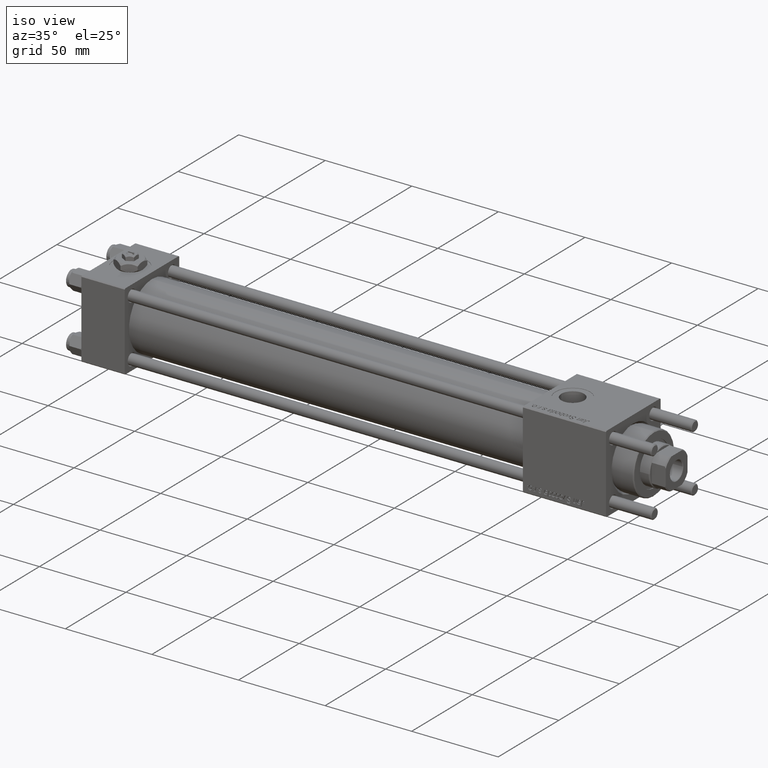
[diagram: clean part render]
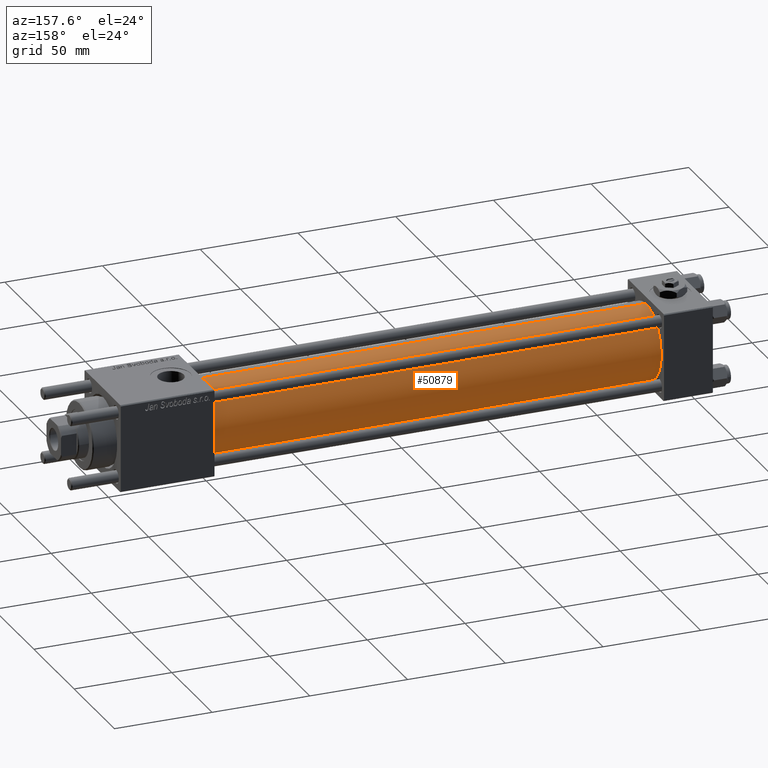
[diagram: tour spotlight — one face highlighted and labeled with its STEP entity id]
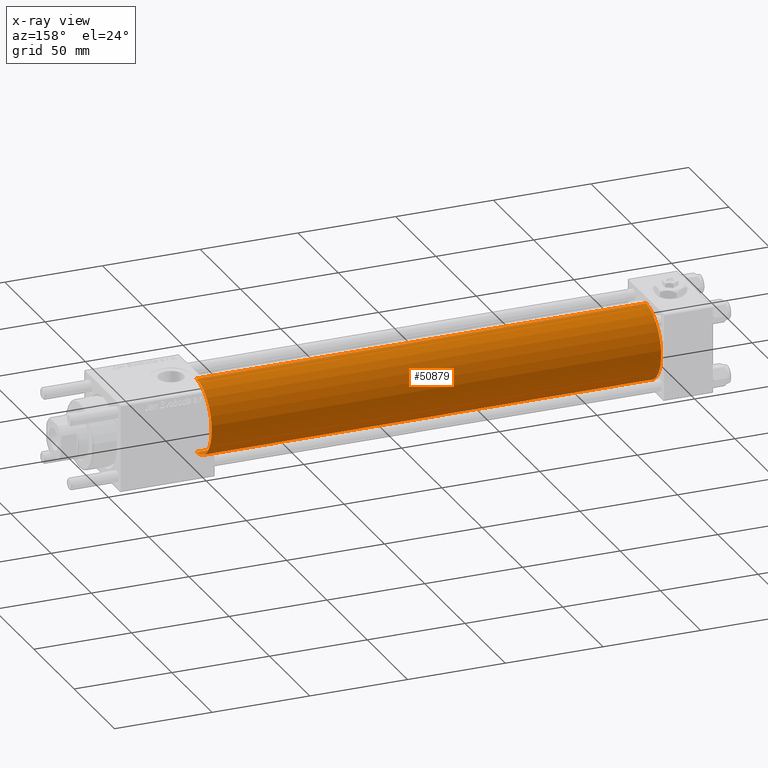
[diagram: x-ray of the same camera — body ghosted, this tour face saturated]
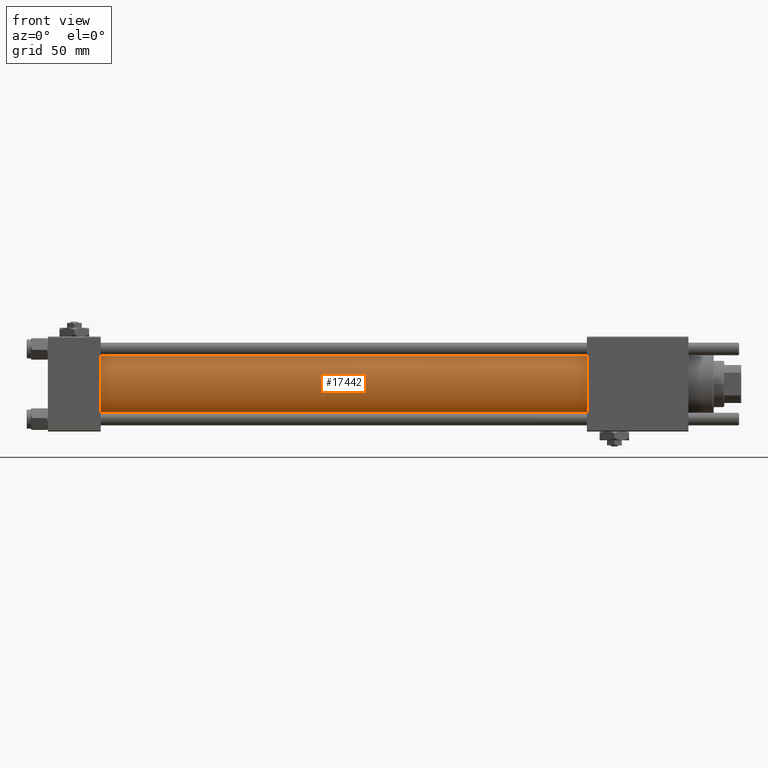
[diagram: tour spotlight — one face highlighted and labeled with its STEP entity id]
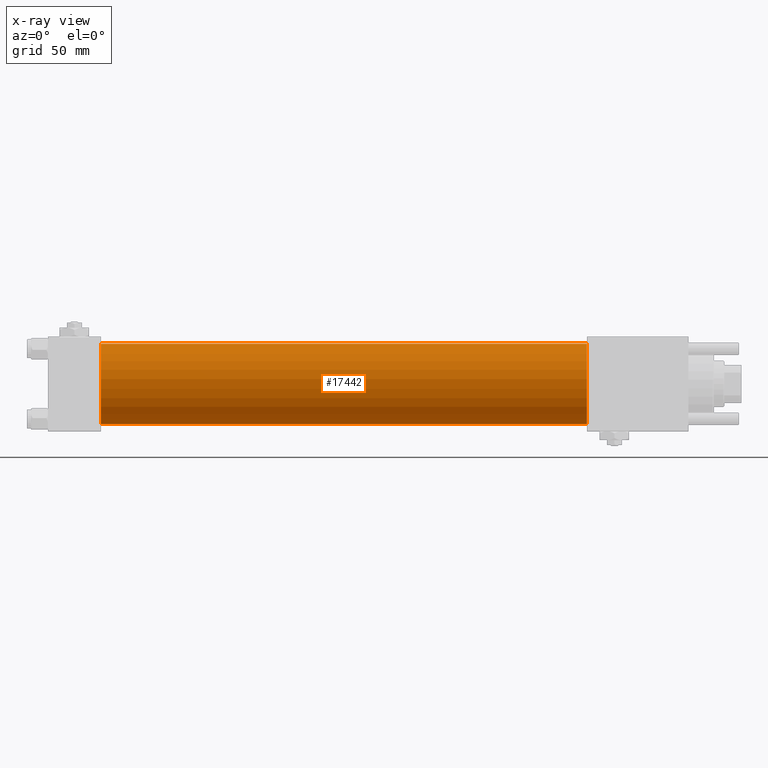
[diagram: x-ray of the same camera — body ghosted, this tour face saturated]
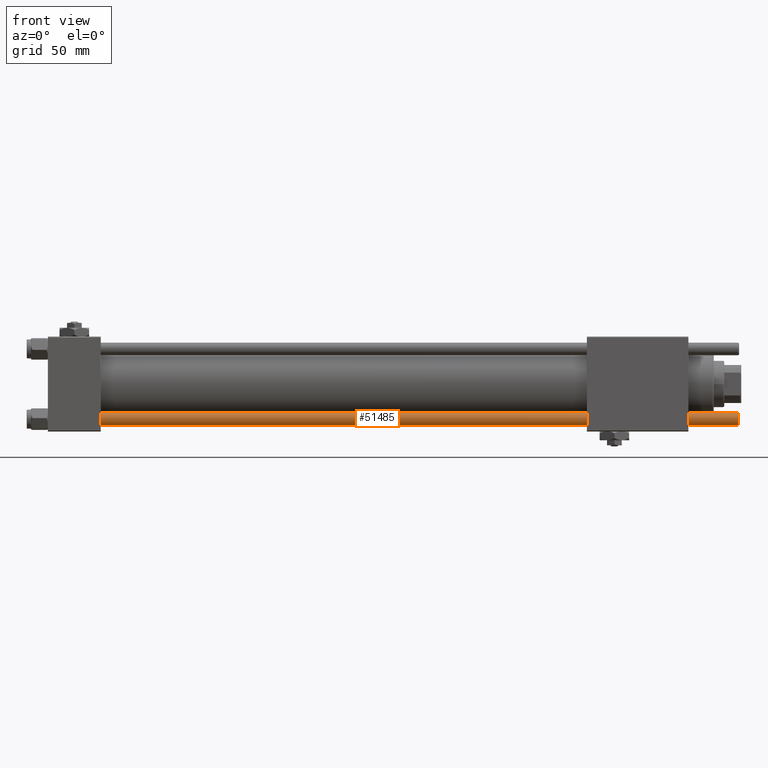
[diagram: tour spotlight — one face highlighted and labeled with its STEP entity id]
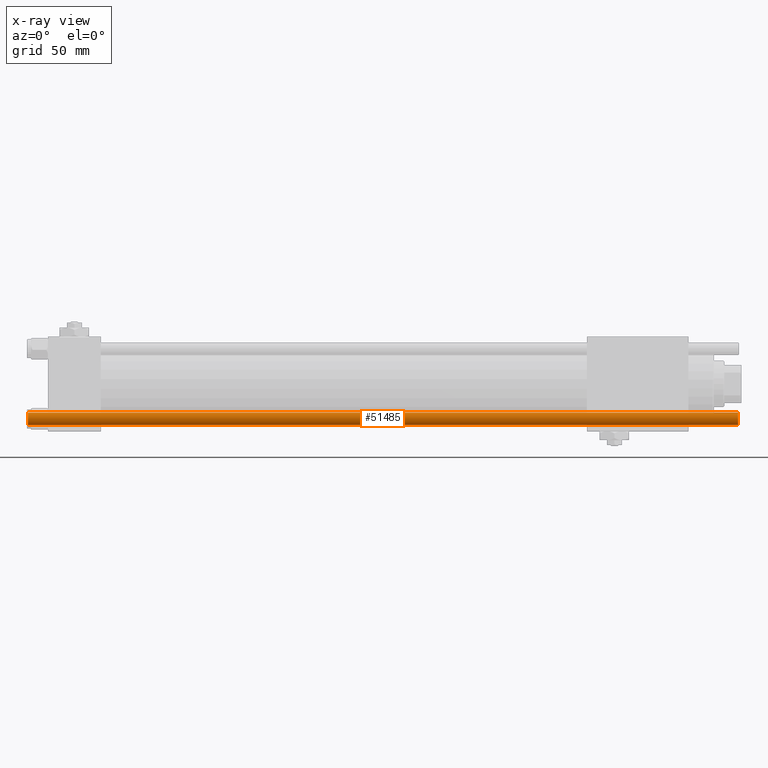
[diagram: x-ray of the same camera — body ghosted, this tour face saturated]
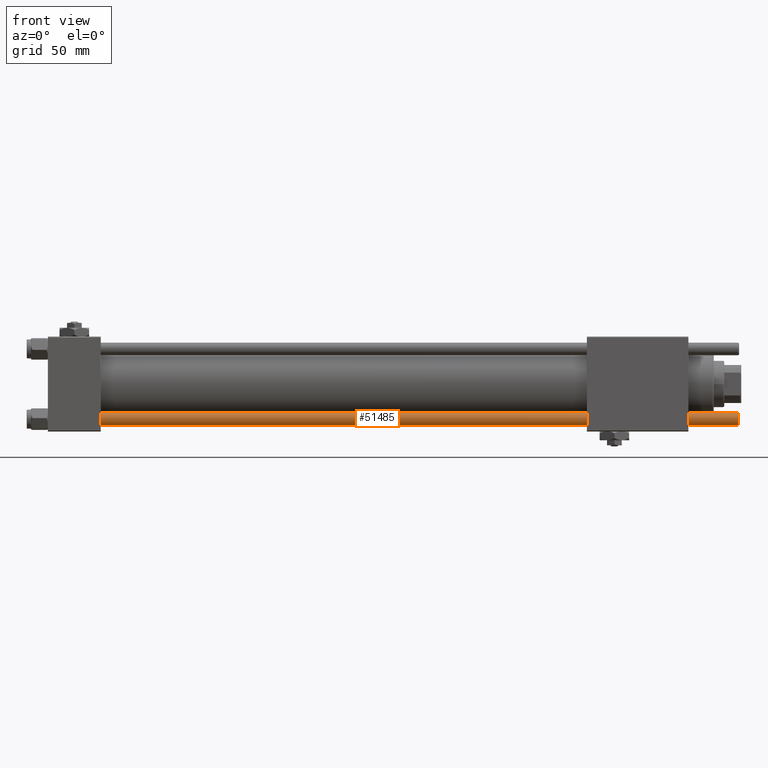
[diagram: tour spotlight — one face highlighted and labeled with its STEP entity id]
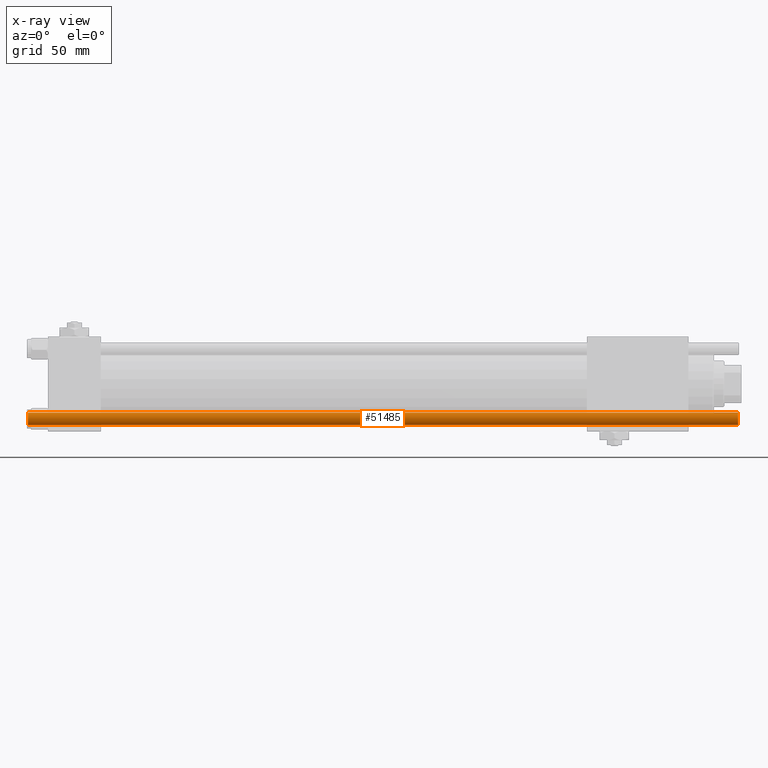
[diagram: x-ray of the same camera — body ghosted, this tour face saturated]
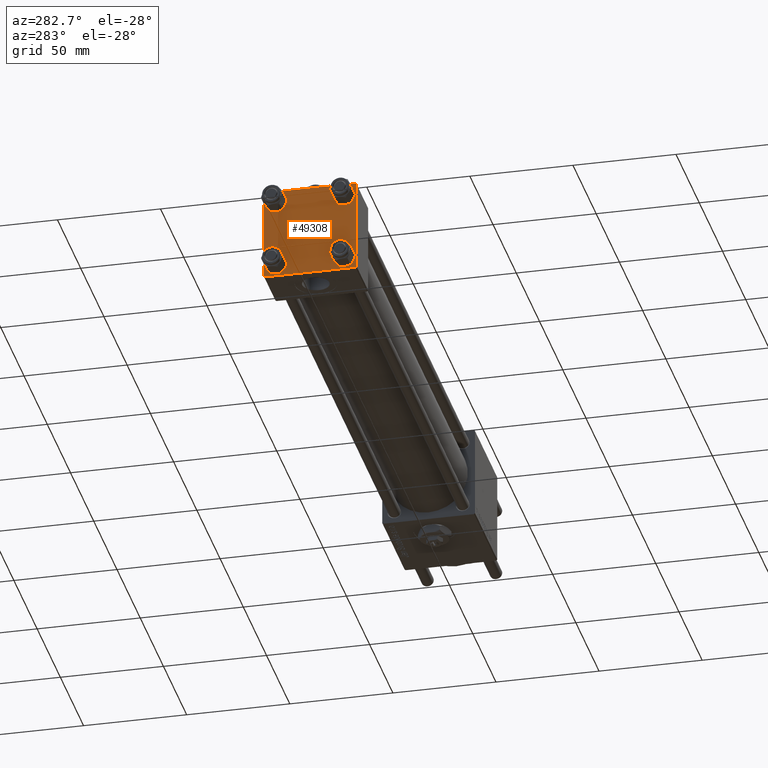
[diagram: tour spotlight — one face highlighted and labeled with its STEP entity id]
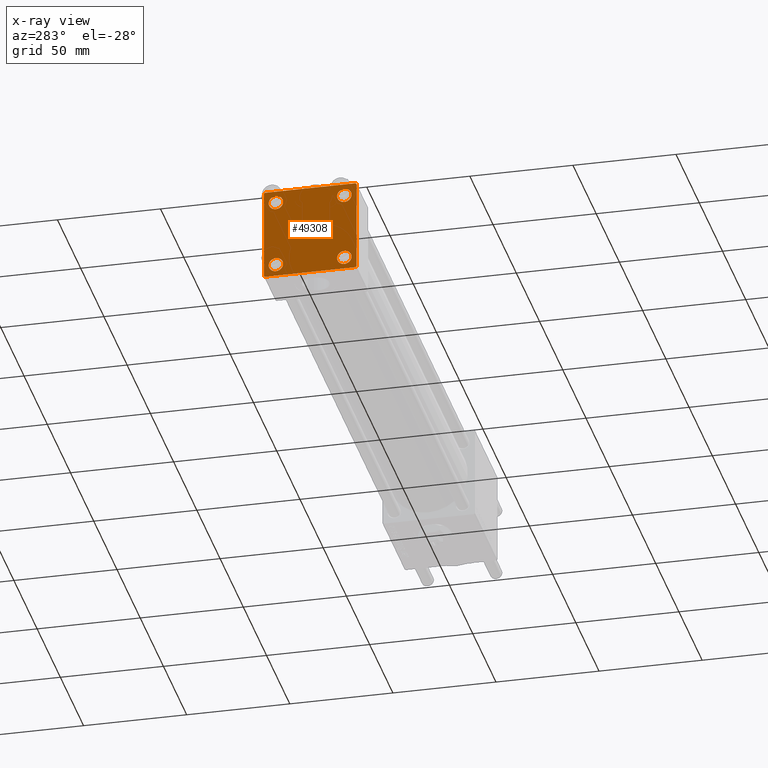
[diagram: x-ray of the same camera — body ghosted, this tour face saturated]
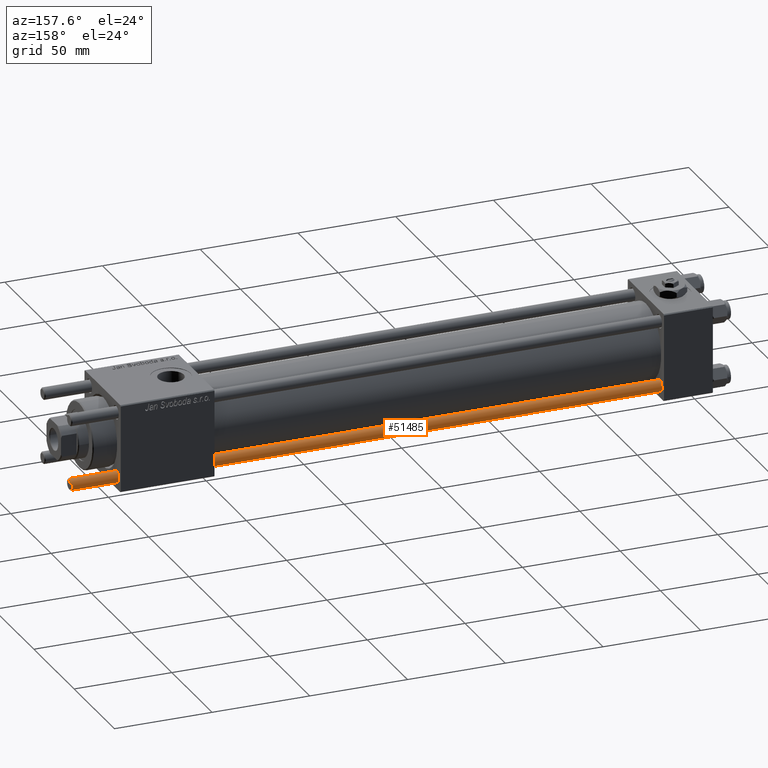
[diagram: tour spotlight — one face highlighted and labeled with its STEP entity id]
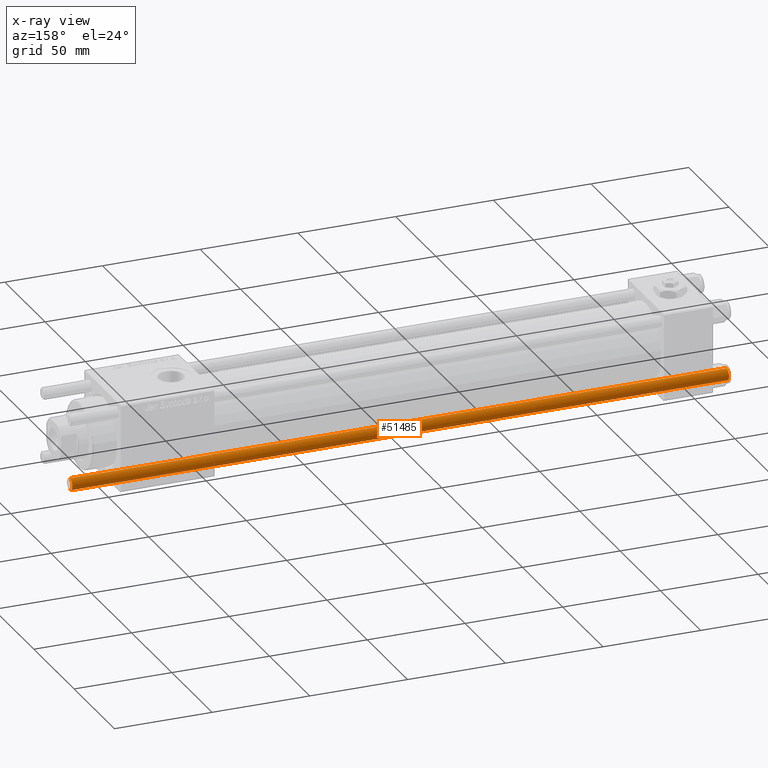
[diagram: x-ray of the same camera — body ghosted, this tour face saturated]
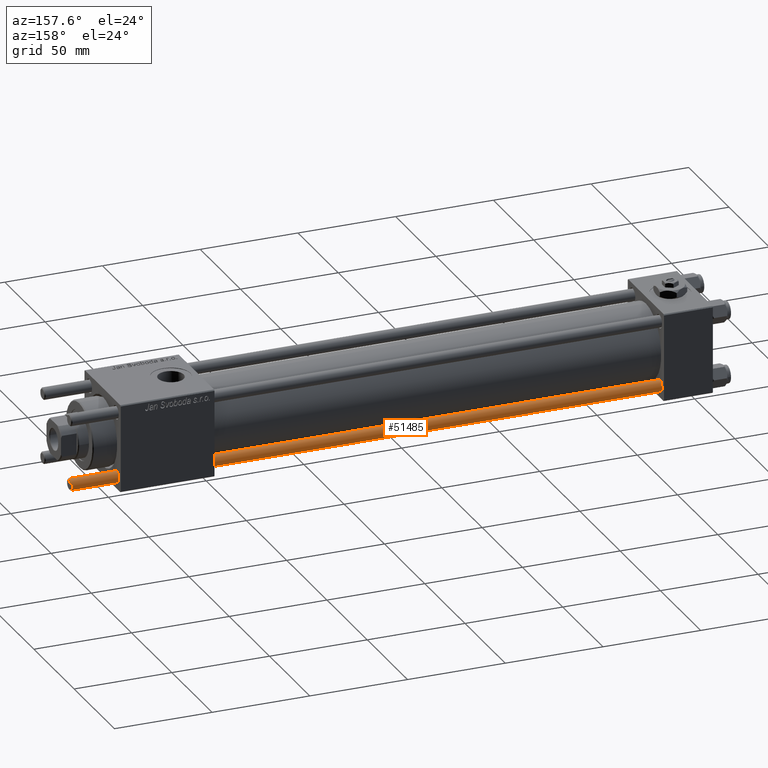
[diagram: tour spotlight — one face highlighted and labeled with its STEP entity id]
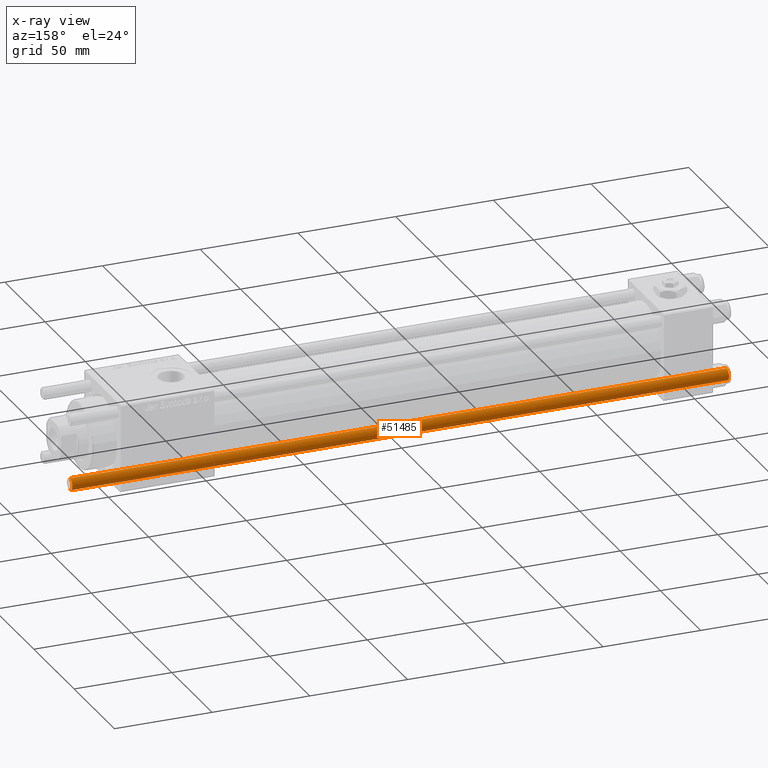
[diagram: x-ray of the same camera — body ghosted, this tour face saturated]
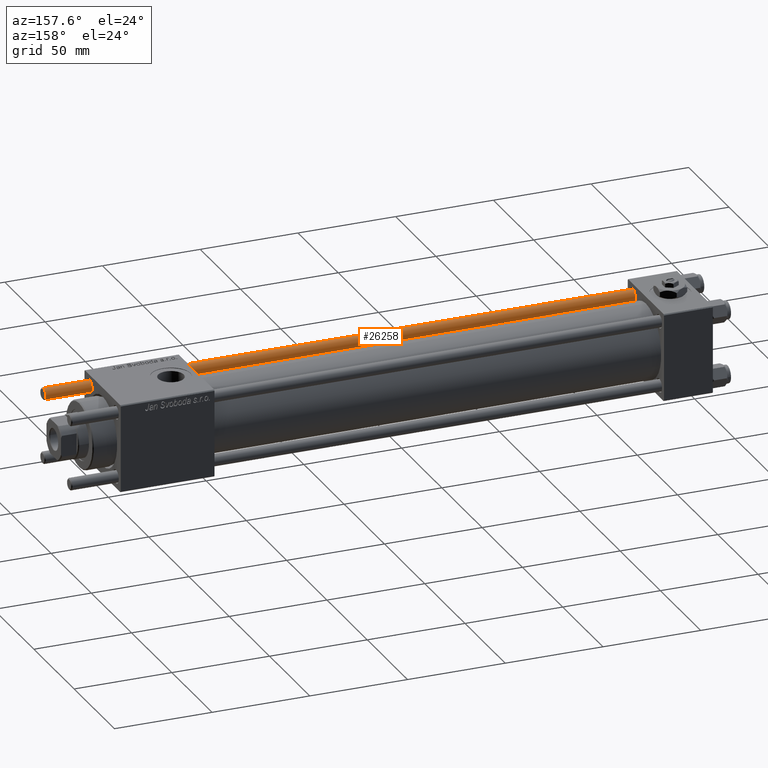
[diagram: tour spotlight — one face highlighted and labeled with its STEP entity id]
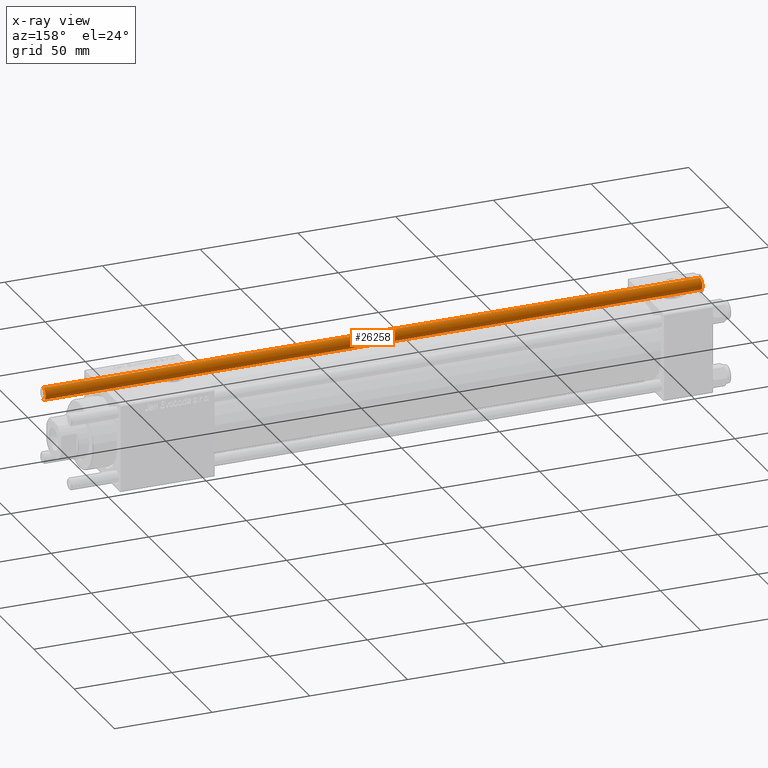
[diagram: x-ray of the same camera — body ghosted, this tour face saturated]
A machine part: a face-by-face anatomy tour. The part has 1289 B-rep faces; the first image is the clean iso view, then the 8 largest visible faces are spotlighted one at a time (largest first), each with its STEP entity span.

Face 1 — auxiliary view, entity #50879. An x-ray twin of the same camera follows (body ghosted, this face saturated) — the face is partly hidden behind the body. In plain terms, the highlighted cylindrical surface (partial cylindrical patch) has radius 19 mm, axis along (-1, -0, -0).
Definition (entity closure, byte-faithful):
#317 = LINE ( 'NONE', #50975, #59603 ) ;
#2407 = DIRECTION ( 'NONE',  ( 0.000000000000000000, 0.000000000000000000, 1.000000000000000000 ) ) ;
#2919 = EDGE_CURVE ( 'NONE', #53816, #19414, #59948, .T. ) ;
#3761 = ORIENTED_EDGE ( 'NONE', *, *, #2919, .F. ) ;
#5658 = DIRECTION ( 'NONE',  ( 0.000000000000000000, 0.000000000000000000, -1.000000000000000000 ) ) ;
#5875 = EDGE_LOOP ( 'NONE', ( #16037, #48834, #46696, #3761 ) ) ;
#6289 = VERTEX_POINT ( 'NONE', #48952 ) ;
#9291 = CIRCLE ( 'NONE', #21901, 19.00000000000000000 ) ;
#9510 = DIRECTION ( 'NONE',  ( 1.000000000000000000, -0.000000000000000000, 0.000000000000000000 ) ) ;
#11367 = EDGE_CURVE ( 'NONE', #25523, #19414, #9291, .T. ) ;
#16000 = AXIS2_PLACEMENT_3D ( 'NONE', #34871, #39728, #2407 ) ;
#16037 = ORIENTED_EDGE ( 'NONE', *, *, #42565, .F. ) ;
#18234 = DIRECTION ( 'NONE',  ( -1.000000000000000000, -0.000000000000000000, -0.000000000000000000 ) ) ;
#18658 = AXIS2_PLACEMENT_3D ( 'NONE', #50378, #22442, #5658 ) ;
#19414 = VERTEX_POINT ( 'NONE', #50429 ) ;
#21901 = AXIS2_PLACEMENT_3D ( 'NONE', #51069, #9510, #28006 ) ;
#22442 = DIRECTION ( 'NONE',  ( 1.000000000000000000, 0.000000000000000000, 0.000000000000000000 ) ) ;
#25297 = DIRECTION ( 'NONE',  ( -1.000000000000000000, -0.000000000000000000, -0.000000000000000000 ) ) ;
#25523 = VERTEX_POINT ( 'NONE', #56950 ) ;
#28006 = DIRECTION ( 'NONE',  ( 0.000000000000000000, 0.000000000000000000, 1.000000000000000000 ) ) ;
#28334 = CIRCLE ( 'NONE', #18658, 19.00000000000000000 ) ;
#34871 = CARTESIAN_POINT ( 'NONE',  ( 255.0000000000000000, -2.602085213965210642E-15, 0.000000000000000000 ) ) ;
#39728 = DIRECTION ( 'NONE',  ( -1.000000000000000000, -0.000000000000000000, -0.000000000000000000 ) ) ;
#41348 = EDGE_CURVE ( 'NONE', #6289, #25523, #317, .T. ) ;
#42565 = EDGE_CURVE ( 'NONE', #6289, #53816, #28334, .T. ) ;
#43668 = FACE_OUTER_BOUND ( 'NONE', #5875, .T. ) ;
#43970 = CYLINDRICAL_SURFACE ( 'NONE', #16000, 19.00000000000000000 ) ;
#46696 = ORIENTED_EDGE ( 'NONE', *, *, #11367, .T. ) ;
#48834 = ORIENTED_EDGE ( 'NONE', *, *, #41348, .T. ) ;
#48952 = CARTESIAN_POINT ( 'NONE',  ( 255.0000000000000000, -2.752562955852396712E-16, -19.00000000000000000 ) ) ;
#50378 = CARTESIAN_POINT ( 'NONE',  ( 255.0000000000000000, -2.602085213965210642E-15, 0.000000000000000000 ) ) ;
#50429 = CARTESIAN_POINT ( 'NONE',  ( 24.99999999999999289, -2.602085213965210642E-15, 19.00000000000000000 ) ) ;
#50879 = ADVANCED_FACE ( 'NONE', ( #43668 ), #43970, .T. ) ;
#50975 = CARTESIAN_POINT ( 'NONE',  ( 255.0000000000000000, -2.752562955852396712E-16, -19.00000000000000000 ) ) ;
#51069 = CARTESIAN_POINT ( 'NONE',  ( 24.99999999999999289, -2.602085213965210642E-15, 0.000000000000000000 ) ) ;
#52116 = VECTOR ( 'NONE', #25297, 1000.000000000000000 ) ;
#52316 = CARTESIAN_POINT ( 'NONE',  ( 255.0000000000000000, -2.602085213965210642E-15, 19.00000000000000000 ) ) ;
#52654 = CARTESIAN_POINT ( 'NONE',  ( 255.0000000000000000, -2.602085213965210642E-15, 19.00000000000000000 ) ) ;
#53816 = VERTEX_POINT ( 'NONE', #52654 ) ;
#56950 = CARTESIAN_POINT ( 'NONE',  ( 24.99999999999999289, -2.752562955852396712E-16, -19.00000000000000000 ) ) ;
#59603 = VECTOR ( 'NONE', #18234, 1000.000000000000000 ) ;
#59948 = LINE ( 'NONE', #52316, #52116 ) ;

Face 2 — front view, entity #17442. An x-ray twin of the same camera follows (body ghosted, this face saturated) — the face is partly hidden behind the body. In plain terms, the highlighted cylindrical surface (partial cylindrical patch) has radius 19 mm, axis along (-1, -0, -0).
Definition (entity closure, byte-faithful):
#317 = LINE ( 'NONE', #50975, #59603 ) ;
#2919 = EDGE_CURVE ( 'NONE', #53816, #19414, #59948, .T. ) ;
#3516 = DIRECTION ( 'NONE',  ( -1.000000000000000000, -0.000000000000000000, -0.000000000000000000 ) ) ;
#6289 = VERTEX_POINT ( 'NONE', #48952 ) ;
#8060 = CARTESIAN_POINT ( 'NONE',  ( 255.0000000000000000, -2.602085213965210642E-15, 0.000000000000000000 ) ) ;
#11700 = AXIS2_PLACEMENT_3D ( 'NONE', #19604, #33543, #47230 ) ;
#13157 = ORIENTED_EDGE ( 'NONE', *, *, #2919, .T. ) ;
#14119 = CARTESIAN_POINT ( 'NONE',  ( 24.99999999999999289, -2.602085213965210642E-15, 0.000000000000000000 ) ) ;
#17442 = ADVANCED_FACE ( 'NONE', ( #18665 ), #36858, .T. ) ;
#17515 = DIRECTION ( 'NONE',  ( 1.000000000000000000, -0.000000000000000000, 0.000000000000000000 ) ) ;
#18234 = DIRECTION ( 'NONE',  ( -1.000000000000000000, -0.000000000000000000, -0.000000000000000000 ) ) ;
#18404 = DIRECTION ( 'NONE',  ( 0.000000000000000000, 0.000000000000000000, 1.000000000000000000 ) ) ;
#18665 = FACE_OUTER_BOUND ( 'NONE', #50983, .T. ) ;
#19145 = EDGE_CURVE ( 'NONE', #19414, #25523, #34752, .T. ) ;
#19414 = VERTEX_POINT ( 'NONE', #50429 ) ;
#19604 = CARTESIAN_POINT ( 'NONE',  ( 255.0000000000000000, -2.602085213965210642E-15, 0.000000000000000000 ) ) ;
#19613 = ORIENTED_EDGE ( 'NONE', *, *, #28134, .F. ) ;
#25297 = DIRECTION ( 'NONE',  ( -1.000000000000000000, -0.000000000000000000, -0.000000000000000000 ) ) ;
#25523 = VERTEX_POINT ( 'NONE', #56950 ) ;
#28134 = EDGE_CURVE ( 'NONE', #53816, #6289, #44595, .T. ) ;
#31129 = ORIENTED_EDGE ( 'NONE', *, *, #19145, .T. ) ;
#33543 = DIRECTION ( 'NONE',  ( 1.000000000000000000, 0.000000000000000000, 0.000000000000000000 ) ) ;
#34752 = CIRCLE ( 'NONE', #54132, 19.00000000000000000 ) ;
#35665 = AXIS2_PLACEMENT_3D ( 'NONE', #8060, #3516, #46274 ) ;
#36858 = CYLINDRICAL_SURFACE ( 'NONE', #35665, 19.00000000000000000 ) ;
#36862 = ORIENTED_EDGE ( 'NONE', *, *, #41348, .F. ) ;
#41348 = EDGE_CURVE ( 'NONE', #6289, #25523, #317, .T. ) ;
#44595 = CIRCLE ( 'NONE', #11700, 19.00000000000000000 ) ;
#46274 = DIRECTION ( 'NONE',  ( 0.000000000000000000, 0.000000000000000000, 1.000000000000000000 ) ) ;
#47230 = DIRECTION ( 'NONE',  ( 0.000000000000000000, 0.000000000000000000, -1.000000000000000000 ) ) ;
#48952 = CARTESIAN_POINT ( 'NONE',  ( 255.0000000000000000, -2.752562955852396712E-16, -19.00000000000000000 ) ) ;
#50429 = CARTESIAN_POINT ( 'NONE',  ( 24.99999999999999289, -2.602085213965210642E-15, 19.00000000000000000 ) ) ;
#50975 = CARTESIAN_POINT ( 'NONE',  ( 255.0000000000000000, -2.752562955852396712E-16, -19.00000000000000000 ) ) ;
#50983 = EDGE_LOOP ( 'NONE', ( #36862, #19613, #13157, #31129 ) ) ;
#52116 = VECTOR ( 'NONE', #25297, 1000.000000000000000 ) ;
#52316 = CARTESIAN_POINT ( 'NONE',  ( 255.0000000000000000, -2.602085213965210642E-15, 19.00000000000000000 ) ) ;
#52654 = CARTESIAN_POINT ( 'NONE',  ( 255.0000000000000000, -2.602085213965210642E-15, 19.00000000000000000 ) ) ;
#53816 = VERTEX_POINT ( 'NONE', #52654 ) ;
#54132 = AXIS2_PLACEMENT_3D ( 'NONE', #14119, #17515, #18404 ) ;
#56950 = CARTESIAN_POINT ( 'NONE',  ( 24.99999999999999289, -2.752562955852396712E-16, -19.00000000000000000 ) ) ;
#59603 = VECTOR ( 'NONE', #18234, 1000.000000000000000 ) ;
#59948 = LINE ( 'NONE', #52316, #52116 ) ;

Face 3 — front view, entity #51485. An x-ray twin of the same camera follows (body ghosted, this face saturated) — the face is partly hidden behind the body. In plain terms, the highlighted cylindrical surface (edge-blend (fillet) strip) has radius 3 mm, axis along (-1, 0, -0).
Definition (entity closure, byte-faithful):
#549 = ORIENTED_EDGE ( 'NONE', *, *, #24939, .T. ) ;
#1803 = EDGE_CURVE ( 'NONE', #59349, #42603, #37555, .T. ) ;
#2450 = CARTESIAN_POINT ( 'NONE',  ( 3.000000000000000444, 3.673940397442060361E-16, 0.5000000000000004441 ) ) ;
#2506 = DIRECTION ( 'NONE',  ( -0.000000000000000000, -0.000000000000000000, -1.000000000000000000 ) ) ;
#3656 = CARTESIAN_POINT ( 'NONE',  ( 3.000000000000000444, 3.673940397442060361E-16, 336.5000000000000568 ) ) ;
#5898 = CIRCLE ( 'NONE', #45680, 3.000000000000000444 ) ;
#8774 = DIRECTION ( 'NONE',  ( 1.000000000000000000, 0.000000000000000000, 0.000000000000000000 ) ) ;
#9568 = DIRECTION ( 'NONE',  ( -0.000000000000000000, -0.000000000000000000, -1.000000000000000000 ) ) ;
#10573 = VECTOR ( 'NONE', #9568, 1000.000000000000000 ) ;
#11234 = AXIS2_PLACEMENT_3D ( 'NONE', #18149, #55154, #58819 ) ;
#12803 = LINE ( 'NONE', #44069, #31661 ) ;
#13324 = VERTEX_POINT ( 'NONE', #44807 ) ;
#14117 = EDGE_LOOP ( 'NONE', ( #24454, #549, #26955, #58044 ) ) ;
#16948 = CYLINDRICAL_SURFACE ( 'NONE', #11234, 3.000000000000000444 ) ;
#18149 = CARTESIAN_POINT ( 'NONE',  ( 0.000000000000000000, 0.000000000000000000, 337.0000000000000000 ) ) ;
#21042 = DIRECTION ( 'NONE',  ( 0.000000000000000000, 0.000000000000000000, -1.000000000000000000 ) ) ;
#24454 = ORIENTED_EDGE ( 'NONE', *, *, #1803, .T. ) ;
#24939 = EDGE_CURVE ( 'NONE', #42603, #27557, #51132, .T. ) ;
#25293 = CARTESIAN_POINT ( 'NONE',  ( 0.000000000000000000, 0.000000000000000000, 336.5000000000000568 ) ) ;
#26955 = ORIENTED_EDGE ( 'NONE', *, *, #30083, .T. ) ;
#27557 = VERTEX_POINT ( 'NONE', #2450 ) ;
#30083 = EDGE_CURVE ( 'NONE', #27557, #13324, #5898, .T. ) ;
#31218 = DIRECTION ( 'NONE',  ( -0.000000000000000000, -0.000000000000000000, 1.000000000000000000 ) ) ;
#31477 = FACE_OUTER_BOUND ( 'NONE', #14117, .T. ) ;
#31661 = VECTOR ( 'NONE', #2506, 1000.000000000000000 ) ;
#37457 = CARTESIAN_POINT ( 'NONE',  ( 3.000000000000000444, 3.673940397442060361E-16, 337.0000000000000000 ) ) ;
#37555 = CIRCLE ( 'NONE', #57937, 3.000000000000000444 ) ;
#41231 = CARTESIAN_POINT ( 'NONE',  ( 0.000000000000000000, 0.000000000000000000, 0.5000000000000004441 ) ) ;
#42603 = VERTEX_POINT ( 'NONE', #3656 ) ;
#43466 = CARTESIAN_POINT ( 'NONE',  ( -3.000000000000000444, 0.000000000000000000, 336.5000000000000568 ) ) ;
#44069 = CARTESIAN_POINT ( 'NONE',  ( -3.000000000000000444, 0.000000000000000000, 337.0000000000000000 ) ) ;
#44713 = DIRECTION ( 'NONE',  ( 1.000000000000000000, 0.000000000000000000, 0.000000000000000000 ) ) ;
#44807 = CARTESIAN_POINT ( 'NONE',  ( -3.000000000000000444, 0.000000000000000000, 0.5000000000000004441 ) ) ;
#45680 = AXIS2_PLACEMENT_3D ( 'NONE', #41231, #31218, #8774 ) ;
#51132 = LINE ( 'NONE', #37457, #10573 ) ;
#51485 = ADVANCED_FACE ( 'NONE', ( #31477 ), #16948, .T. ) ;
#55154 = DIRECTION ( 'NONE',  ( -0.000000000000000000, -0.000000000000000000, -1.000000000000000000 ) ) ;
#57937 = AXIS2_PLACEMENT_3D ( 'NONE', #25293, #21042, #44713 ) ;
#58044 = ORIENTED_EDGE ( 'NONE', *, *, #59456, .F. ) ;
#58819 = DIRECTION ( 'NONE',  ( -1.000000000000000000, 0.000000000000000000, 0.000000000000000000 ) ) ;
#59349 = VERTEX_POINT ( 'NONE', #43466 ) ;
#59456 = EDGE_CURVE ( 'NONE', #59349, #13324, #12803, .T. ) ;

Face 4 — front view, entity #51485. An x-ray twin of the same camera follows (body ghosted, this face saturated) — the face is partly hidden behind the body. In plain terms, the highlighted cylindrical surface (edge-blend (fillet) strip) has radius 3 mm, axis along (1, 0, 0).
Definition (entity closure, byte-faithful):
#549 = ORIENTED_EDGE ( 'NONE', *, *, #24939, .T. ) ;
#1803 = EDGE_CURVE ( 'NONE', #59349, #42603, #37555, .T. ) ;
#2450 = CARTESIAN_POINT ( 'NONE',  ( 3.000000000000000444, 3.673940397442060361E-16, 0.5000000000000004441 ) ) ;
#2506 = DIRECTION ( 'NONE',  ( -0.000000000000000000, -0.000000000000000000, -1.000000000000000000 ) ) ;
#3656 = CARTESIAN_POINT ( 'NONE',  ( 3.000000000000000444, 3.673940397442060361E-16, 336.5000000000000568 ) ) ;
#5898 = CIRCLE ( 'NONE', #45680, 3.000000000000000444 ) ;
#8774 = DIRECTION ( 'NONE',  ( 1.000000000000000000, 0.000000000000000000, 0.000000000000000000 ) ) ;
#9568 = DIRECTION ( 'NONE',  ( -0.000000000000000000, -0.000000000000000000, -1.000000000000000000 ) ) ;
#10573 = VECTOR ( 'NONE', #9568, 1000.000000000000000 ) ;
#11234 = AXIS2_PLACEMENT_3D ( 'NONE', #18149, #55154, #58819 ) ;
#12803 = LINE ( 'NONE', #44069, #31661 ) ;
#13324 = VERTEX_POINT ( 'NONE', #44807 ) ;
#14117 = EDGE_LOOP ( 'NONE', ( #24454, #549, #26955, #58044 ) ) ;
#16948 = CYLINDRICAL_SURFACE ( 'NONE', #11234, 3.000000000000000444 ) ;
#18149 = CARTESIAN_POINT ( 'NONE',  ( 0.000000000000000000, 0.000000000000000000, 337.0000000000000000 ) ) ;
#21042 = DIRECTION ( 'NONE',  ( 0.000000000000000000, 0.000000000000000000, -1.000000000000000000 ) ) ;
#24454 = ORIENTED_EDGE ( 'NONE', *, *, #1803, .T. ) ;
#24939 = EDGE_CURVE ( 'NONE', #42603, #27557, #51132, .T. ) ;
#25293 = CARTESIAN_POINT ( 'NONE',  ( 0.000000000000000000, 0.000000000000000000, 336.5000000000000568 ) ) ;
#26955 = ORIENTED_EDGE ( 'NONE', *, *, #30083, .T. ) ;
#27557 = VERTEX_POINT ( 'NONE', #2450 ) ;
#30083 = EDGE_CURVE ( 'NONE', #27557, #13324, #5898, .T. ) ;
#31218 = DIRECTION ( 'NONE',  ( -0.000000000000000000, -0.000000000000000000, 1.000000000000000000 ) ) ;
#31477 = FACE_OUTER_BOUND ( 'NONE', #14117, .T. ) ;
#31661 = VECTOR ( 'NONE', #2506, 1000.000000000000000 ) ;
#37457 = CARTESIAN_POINT ( 'NONE',  ( 3.000000000000000444, 3.673940397442060361E-16, 337.0000000000000000 ) ) ;
#37555 = CIRCLE ( 'NONE', #57937, 3.000000000000000444 ) ;
#41231 = CARTESIAN_POINT ( 'NONE',  ( 0.000000000000000000, 0.000000000000000000, 0.5000000000000004441 ) ) ;
#42603 = VERTEX_POINT ( 'NONE', #3656 ) ;
#43466 = CARTESIAN_POINT ( 'NONE',  ( -3.000000000000000444, 0.000000000000000000, 336.5000000000000568 ) ) ;
#44069 = CARTESIAN_POINT ( 'NONE',  ( -3.000000000000000444, 0.000000000000000000, 337.0000000000000000 ) ) ;
#44713 = DIRECTION ( 'NONE',  ( 1.000000000000000000, 0.000000000000000000, 0.000000000000000000 ) ) ;
#44807 = CARTESIAN_POINT ( 'NONE',  ( -3.000000000000000444, 0.000000000000000000, 0.5000000000000004441 ) ) ;
#45680 = AXIS2_PLACEMENT_3D ( 'NONE', #41231, #31218, #8774 ) ;
#51132 = LINE ( 'NONE', #37457, #10573 ) ;
#51485 = ADVANCED_FACE ( 'NONE', ( #31477 ), #16948, .T. ) ;
#55154 = DIRECTION ( 'NONE',  ( -0.000000000000000000, -0.000000000000000000, -1.000000000000000000 ) ) ;
#57937 = AXIS2_PLACEMENT_3D ( 'NONE', #25293, #21042, #44713 ) ;
#58044 = ORIENTED_EDGE ( 'NONE', *, *, #59456, .F. ) ;
#58819 = DIRECTION ( 'NONE',  ( -1.000000000000000000, 0.000000000000000000, 0.000000000000000000 ) ) ;
#59349 = VERTEX_POINT ( 'NONE', #43466 ) ;
#59456 = EDGE_CURVE ( 'NONE', #59349, #13324, #12803, .T. ) ;

Face 5 — auxiliary view, entity #49308. An x-ray twin of the same camera follows (body ghosted, this face saturated) — the face is partly hidden behind the body. In plain terms, the highlighted planar face has unit normal (-1, 0, 0).
Definition (entity closure, byte-faithful):
#105 = LINE ( 'NONE', #4939, #40007 ) ;
#538 = ORIENTED_EDGE ( 'NONE', *, *, #18917, .T. ) ;
#667 = CARTESIAN_POINT ( 'NONE',  ( 0.000000000000000000, -21.99999999999997158, -22.50000000000000711 ) ) ;
#1511 = CARTESIAN_POINT ( 'NONE',  ( 0.000000000000000000, 22.25000000000014566, -22.24999999999984013 ) ) ;
#2232 = CARTESIAN_POINT ( 'NONE',  ( 0.000000000000000000, 22.50000000000000000, 21.99999999999999645 ) ) ;
#2807 = AXIS2_PLACEMENT_3D ( 'NONE', #45294, #13419, #58660 ) ;
#3409 = CARTESIAN_POINT ( 'NONE',  ( 0.000000000000000000, -21.99999999999997868, 22.50000000000000000 ) ) ;
#3921 = EDGE_LOOP ( 'NONE', ( #19836, #41691 ) ) ;
#4417 = EDGE_CURVE ( 'NONE', #13093, #34227, #47944, .T. ) ;
#4939 = CARTESIAN_POINT ( 'NONE',  ( -0.000000000000000000, -22.24999999999984013, 22.25000000000015277 ) ) ;
#5115 = AXIS2_PLACEMENT_3D ( 'NONE', #54262, #58222, #16651 ) ;
#5169 = ORIENTED_EDGE ( 'NONE', *, *, #27403, .T. ) ;
#5592 = EDGE_CURVE ( 'NONE', #34227, #57863, #29733, .T. ) ;
#5642 = DIRECTION ( 'NONE',  ( 0.000000000000000000, 0.000000000000000000, 1.000000000000000000 ) ) ;
#6325 = FACE_OUTER_BOUND ( 'NONE', #51310, .T. ) ;
#6361 = DIRECTION ( 'NONE',  ( -0.000000000000000000, -0.7071067811865426878, -0.7071067811865524577 ) ) ;
#6621 = CARTESIAN_POINT ( 'NONE',  ( 0.000000000000000000, -16.59999999999999076, -13.10000000000001030 ) ) ;
#7272 = ORIENTED_EDGE ( 'NONE', *, *, #5592, .T. ) ;
#7675 = DIRECTION ( 'NONE',  ( 0.000000000000000000, -0.7071067811865426878, 0.7071067811865524577 ) ) ;
#9073 = DIRECTION ( 'NONE',  ( 0.000000000000000000, 0.000000000000000000, 1.000000000000000000 ) ) ;
#9252 = ORIENTED_EDGE ( 'NONE', *, *, #39217, .T. ) ;
#10333 = ORIENTED_EDGE ( 'NONE', *, *, #31866, .T. ) ;
#10869 = VECTOR ( 'NONE', #38920, 1000.000000000000000 ) ;
#11061 = ORIENTED_EDGE ( 'NONE', *, *, #56797, .T. ) ;
#11117 = EDGE_CURVE ( 'NONE', #40372, #13735, #54876, .T. ) ;
#11619 = VERTEX_POINT ( 'NONE', #17669 ) ;
#11775 = CARTESIAN_POINT ( 'NONE',  ( 0.000000000000000000, 0.000000000000000000, 0.000000000000000000 ) ) ;
#11788 = VECTOR ( 'NONE', #7675, 1000.000000000000000 ) ;
#11889 = EDGE_CURVE ( 'NONE', #53658, #29174, #48102, .T. ) ;
#12518 = CARTESIAN_POINT ( 'NONE',  ( 0.000000000000000000, -22.25000000000014566, -22.24999999999984013 ) ) ;
#13020 = CARTESIAN_POINT ( 'NONE',  ( 0.000000000000000000, -16.59999999999999076, 13.10000000000001030 ) ) ;
#13093 = VERTEX_POINT ( 'NONE', #21818 ) ;
#13419 = DIRECTION ( 'NONE',  ( 1.000000000000000000, -0.000000000000000000, 0.000000000000000000 ) ) ;
#13735 = VERTEX_POINT ( 'NONE', #3409 ) ;
#13813 = CIRCLE ( 'NONE', #5115, 3.499999999999996003 ) ;
#14120 = AXIS2_PLACEMENT_3D ( 'NONE', #28677, #47218, #5642 ) ;
#15125 = FACE_BOUND ( 'NONE', #22524, .T. ) ;
#15558 = CARTESIAN_POINT ( 'NONE',  ( 0.000000000000000000, -22.50000000000000000, 22.50000000000000000 ) ) ;
#16407 = VERTEX_POINT ( 'NONE', #20501 ) ;
#16651 = DIRECTION ( 'NONE',  ( 0.000000000000000000, 0.000000000000000000, 1.000000000000000000 ) ) ;
#16725 = VERTEX_POINT ( 'NONE', #2232 ) ;
#17422 = ORIENTED_EDGE ( 'NONE', *, *, #34070, .F. ) ;
#17669 = CARTESIAN_POINT ( 'NONE',  ( 0.000000000000000000, 16.59999999999999787, -20.10000000000000142 ) ) ;
#18303 = DIRECTION ( 'NONE',  ( 0.000000000000000000, 0.000000000000000000, 1.000000000000000000 ) ) ;
#18917 = EDGE_CURVE ( 'NONE', #19941, #59052, #25038, .T. ) ;
#18985 = CIRCLE ( 'NONE', #14120, 3.499999999999996003 ) ;
#19836 = ORIENTED_EDGE ( 'NONE', *, *, #21989, .T. ) ;
#19941 = VERTEX_POINT ( 'NONE', #47888 ) ;
#20501 = CARTESIAN_POINT ( 'NONE',  ( 0.000000000000000000, -22.50000000000000000, 22.00000000000000000 ) ) ;
#20808 = VERTEX_POINT ( 'NONE', #6621 ) ;
#20876 = FACE_BOUND ( 'NONE', #49128, .T. ) ;
#21818 = CARTESIAN_POINT ( 'NONE',  ( 0.000000000000000000, 22.50000000000000000, -21.99999999999996803 ) ) ;
#21989 = EDGE_CURVE ( 'NONE', #20808, #27889, #45375, .T. ) ;
#22524 = EDGE_LOOP ( 'NONE', ( #23784, #41066 ) ) ;
#23086 = VECTOR ( 'NONE', #6361, 1000.000000000000000 ) ;
#23257 = AXIS2_PLACEMENT_3D ( 'NONE', #39613, #49328, #40201 ) ;
#23784 = ORIENTED_EDGE ( 'NONE', *, *, #42735, .T. ) ;
#23916 = EDGE_CURVE ( 'NONE', #27889, #20808, #48366, .T. ) ;
#24823 = PLANE ( 'NONE',  #42116 ) ;
#25038 = CIRCLE ( 'NONE', #57013, 3.499999999999996003 ) ;
#25195 = DIRECTION ( 'NONE',  ( 0.000000000000000000, -1.000000000000000000, -2.312964634635742957E-16 ) ) ;
#26374 = DIRECTION ( 'NONE',  ( 1.000000000000000000, -0.000000000000000000, 0.000000000000000000 ) ) ;
#27079 = ORIENTED_EDGE ( 'NONE', *, *, #36249, .T. ) ;
#27403 = EDGE_CURVE ( 'NONE', #59052, #19941, #53298, .T. ) ;
#27589 = CARTESIAN_POINT ( 'NONE',  ( 0.000000000000000000, 21.99999999999999289, 22.50000000000000355 ) ) ;
#27889 = VERTEX_POINT ( 'NONE', #44547 ) ;
#28234 = CARTESIAN_POINT ( 'NONE',  ( 0.000000000000000000, -22.50000000000000000, -21.99999999999997158 ) ) ;
#28264 = CARTESIAN_POINT ( 'NONE',  ( 0.000000000000000000, 16.59999999999999787, 13.10000000000000675 ) ) ;
#28677 = CARTESIAN_POINT ( 'NONE',  ( 0.000000000000000000, 16.59999999999999787, -16.60000000000000497 ) ) ;
#28880 = AXIS2_PLACEMENT_3D ( 'NONE', #40450, #44709, #18303 ) ;
#29174 = VERTEX_POINT ( 'NONE', #36494 ) ;
#29213 = VECTOR ( 'NONE', #59738, 1000.000000000000000 ) ;
#29559 = ORIENTED_EDGE ( 'NONE', *, *, #11117, .F. ) ;
#29733 = LINE ( 'NONE', #57360, #30892 ) ;
#29898 = DIRECTION ( 'NONE',  ( 0.000000000000000000, 0.000000000000000000, 1.000000000000000000 ) ) ;
#30271 = DIRECTION ( 'NONE',  ( -1.000000000000000000, 0.000000000000000000, -0.000000000000000000 ) ) ;
#30892 = VECTOR ( 'NONE', #25195, 1000.000000000000000 ) ;
#30932 = CARTESIAN_POINT ( 'NONE',  ( 0.000000000000000000, 16.59999999999999787, 16.60000000000000497 ) ) ;
#31866 = EDGE_CURVE ( 'NONE', #57863, #59538, #35273, .T. ) ;
#33030 = ORIENTED_EDGE ( 'NONE', *, *, #57904, .T. ) ;
#34070 = EDGE_CURVE ( 'NONE', #16407, #59538, #48640, .T. ) ;
#34227 = VERTEX_POINT ( 'NONE', #41024 ) ;
#34597 = ORIENTED_EDGE ( 'NONE', *, *, #4417, .T. ) ;
#35273 = LINE ( 'NONE', #12518, #11788 ) ;
#36249 = EDGE_CURVE ( 'NONE', #16725, #13093, #49741, .T. ) ;
#36399 = VECTOR ( 'NONE', #50044, 1000.000000000000000 ) ;
#36494 = CARTESIAN_POINT ( 'NONE',  ( 0.000000000000000000, 16.59999999999999787, 20.10000000000000142 ) ) ;
#37071 = CARTESIAN_POINT ( 'NONE',  ( 0.000000000000000000, 22.24999999999999645, 22.24999999999999645 ) ) ;
#37089 = DIRECTION ( 'NONE',  ( -0.000000000000000000, 0.7071067811865525687, 0.7071067811865425767 ) ) ;
#37667 = LINE ( 'NONE', #37071, #50056 ) ;
#38920 = DIRECTION ( 'NONE',  ( 0.000000000000000000, 0.000000000000000000, -1.000000000000000000 ) ) ;
#39217 = EDGE_CURVE ( 'NONE', #11619, #54433, #13813, .T. ) ;
#39613 = CARTESIAN_POINT ( 'NONE',  ( 0.000000000000000000, -16.59999999999999076, 16.60000000000000853 ) ) ;
#40007 = VECTOR ( 'NONE', #37089, 999.9999999999998863 ) ;
#40201 = DIRECTION ( 'NONE',  ( 0.000000000000000000, 0.000000000000000000, 1.000000000000000000 ) ) ;
#40317 = CARTESIAN_POINT ( 'NONE',  ( 0.000000000000000000, 22.50000000000000000, 22.50000000000000355 ) ) ;
#40372 = VERTEX_POINT ( 'NONE', #27589 ) ;
#40450 = CARTESIAN_POINT ( 'NONE',  ( 0.000000000000000000, -16.59999999999999076, -16.60000000000000853 ) ) ;
#40961 = AXIS2_PLACEMENT_3D ( 'NONE', #56616, #52068, #29898 ) ;
#41024 = CARTESIAN_POINT ( 'NONE',  ( 0.000000000000000000, 21.99999999999999289, -22.49999999999999645 ) ) ;
#41066 = ORIENTED_EDGE ( 'NONE', *, *, #11889, .T. ) ;
#41691 = ORIENTED_EDGE ( 'NONE', *, *, #23916, .T. ) ;
#41906 = CIRCLE ( 'NONE', #40961, 3.499999999999996003 ) ;
#42116 = AXIS2_PLACEMENT_3D ( 'NONE', #11775, #30271, #48208 ) ;
#42735 = EDGE_CURVE ( 'NONE', #29174, #53658, #41906, .T. ) ;
#43942 = FACE_BOUND ( 'NONE', #59787, .T. ) ;
#44182 = EDGE_CURVE ( 'NONE', #16407, #13735, #105, .T. ) ;
#44547 = CARTESIAN_POINT ( 'NONE',  ( 0.000000000000000000, -16.59999999999999076, -20.10000000000000497 ) ) ;
#44709 = DIRECTION ( 'NONE',  ( 1.000000000000000000, -0.000000000000000000, 0.000000000000000000 ) ) ;
#45180 = CARTESIAN_POINT ( 'NONE',  ( 0.000000000000000000, 22.50000000000000000, 22.50000000000000355 ) ) ;
#45294 = CARTESIAN_POINT ( 'NONE',  ( 0.000000000000000000, -16.59999999999999076, -16.60000000000000853 ) ) ;
#45375 = CIRCLE ( 'NONE', #28880, 3.499999999999996003 ) ;
#46032 = CARTESIAN_POINT ( 'NONE',  ( 0.000000000000000000, 16.59999999999999787, -13.10000000000000675 ) ) ;
#47218 = DIRECTION ( 'NONE',  ( 1.000000000000000000, -0.000000000000000000, 0.000000000000000000 ) ) ;
#47888 = CARTESIAN_POINT ( 'NONE',  ( 0.000000000000000000, -16.59999999999999076, 20.10000000000000853 ) ) ;
#47944 = LINE ( 'NONE', #1511, #23086 ) ;
#48102 = CIRCLE ( 'NONE', #55843, 3.499999999999996003 ) ;
#48208 = DIRECTION ( 'NONE',  ( -0.000000000000000000, 0.000000000000000000, 1.000000000000000000 ) ) ;
#48366 = CIRCLE ( 'NONE', #2807, 3.499999999999996003 ) ;
#48610 = ORIENTED_EDGE ( 'NONE', *, *, #44182, .T. ) ;
#48640 = LINE ( 'NONE', #15558, #10869 ) ;
#49128 = EDGE_LOOP ( 'NONE', ( #11061, #9252 ) ) ;
#49308 = ADVANCED_FACE ( 'NONE', ( #43942, #56695, #20876, #15125, #6325 ), #24823, .T. ) ;
#49328 = DIRECTION ( 'NONE',  ( 1.000000000000000000, -0.000000000000000000, 0.000000000000000000 ) ) ;
#49461 = DIRECTION ( 'NONE',  ( 1.000000000000000000, -0.000000000000000000, 0.000000000000000000 ) ) ;
#49741 = LINE ( 'NONE', #40317, #29213 ) ;
#50044 = DIRECTION ( 'NONE',  ( 0.000000000000000000, -1.000000000000000000, -7.709882115452476934E-17 ) ) ;
#50056 = VECTOR ( 'NONE', #55587, 1000.000000000000114 ) ;
#51310 = EDGE_LOOP ( 'NONE', ( #27079, #34597, #7272, #10333, #17422, #48610, #29559, #33030 ) ) ;
#52068 = DIRECTION ( 'NONE',  ( 1.000000000000000000, -0.000000000000000000, 0.000000000000000000 ) ) ;
#53298 = CIRCLE ( 'NONE', #23257, 3.499999999999996003 ) ;
#53658 = VERTEX_POINT ( 'NONE', #28264 ) ;
#53696 = DIRECTION ( 'NONE',  ( 0.000000000000000000, 0.000000000000000000, 1.000000000000000000 ) ) ;
#53992 = CARTESIAN_POINT ( 'NONE',  ( 0.000000000000000000, -16.59999999999999076, 16.60000000000000853 ) ) ;
#54262 = CARTESIAN_POINT ( 'NONE',  ( 0.000000000000000000, 16.59999999999999787, -16.60000000000000497 ) ) ;
#54433 = VERTEX_POINT ( 'NONE', #46032 ) ;
#54876 = LINE ( 'NONE', #45180, #36399 ) ;
#55587 = DIRECTION ( 'NONE',  ( 0.000000000000000000, 0.7071067811865474617, -0.7071067811865474617 ) ) ;
#55843 = AXIS2_PLACEMENT_3D ( 'NONE', #30932, #49461, #9073 ) ;
#56616 = CARTESIAN_POINT ( 'NONE',  ( 0.000000000000000000, 16.59999999999999787, 16.60000000000000497 ) ) ;
#56695 = FACE_BOUND ( 'NONE', #3921, .T. ) ;
#56797 = EDGE_CURVE ( 'NONE', #54433, #11619, #18985, .T. ) ;
#57013 = AXIS2_PLACEMENT_3D ( 'NONE', #53992, #26374, #53696 ) ;
#57360 = CARTESIAN_POINT ( 'NONE',  ( 0.000000000000000000, 22.50000000000000000, -22.49999999999999645 ) ) ;
#57863 = VERTEX_POINT ( 'NONE', #667 ) ;
#57904 = EDGE_CURVE ( 'NONE', #40372, #16725, #37667, .T. ) ;
#58222 = DIRECTION ( 'NONE',  ( 1.000000000000000000, -0.000000000000000000, 0.000000000000000000 ) ) ;
#58660 = DIRECTION ( 'NONE',  ( 0.000000000000000000, 0.000000000000000000, 1.000000000000000000 ) ) ;
#59052 = VERTEX_POINT ( 'NONE', #13020 ) ;
#59538 = VERTEX_POINT ( 'NONE', #28234 ) ;
#59738 = DIRECTION ( 'NONE',  ( 0.000000000000000000, 0.000000000000000000, -1.000000000000000000 ) ) ;
#59787 = EDGE_LOOP ( 'NONE', ( #538, #5169 ) ) ;

Face 6 — auxiliary view, entity #51485. An x-ray twin of the same camera follows (body ghosted, this face saturated) — the face is partly hidden behind the body. In plain terms, the highlighted cylindrical surface (edge-blend (fillet) strip) has radius 3 mm, axis along (1, -0, -0).
Definition (entity closure, byte-faithful):
#549 = ORIENTED_EDGE ( 'NONE', *, *, #24939, .T. ) ;
#1803 = EDGE_CURVE ( 'NONE', #59349, #42603, #37555, .T. ) ;
#2450 = CARTESIAN_POINT ( 'NONE',  ( 3.000000000000000444, 3.673940397442060361E-16, 0.5000000000000004441 ) ) ;
#2506 = DIRECTION ( 'NONE',  ( -0.000000000000000000, -0.000000000000000000, -1.000000000000000000 ) ) ;
#3656 = CARTESIAN_POINT ( 'NONE',  ( 3.000000000000000444, 3.673940397442060361E-16, 336.5000000000000568 ) ) ;
#5898 = CIRCLE ( 'NONE', #45680, 3.000000000000000444 ) ;
#8774 = DIRECTION ( 'NONE',  ( 1.000000000000000000, 0.000000000000000000, 0.000000000000000000 ) ) ;
#9568 = DIRECTION ( 'NONE',  ( -0.000000000000000000, -0.000000000000000000, -1.000000000000000000 ) ) ;
#10573 = VECTOR ( 'NONE', #9568, 1000.000000000000000 ) ;
#11234 = AXIS2_PLACEMENT_3D ( 'NONE', #18149, #55154, #58819 ) ;
#12803 = LINE ( 'NONE', #44069, #31661 ) ;
#13324 = VERTEX_POINT ( 'NONE', #44807 ) ;
#14117 = EDGE_LOOP ( 'NONE', ( #24454, #549, #26955, #58044 ) ) ;
#16948 = CYLINDRICAL_SURFACE ( 'NONE', #11234, 3.000000000000000444 ) ;
#18149 = CARTESIAN_POINT ( 'NONE',  ( 0.000000000000000000, 0.000000000000000000, 337.0000000000000000 ) ) ;
#21042 = DIRECTION ( 'NONE',  ( 0.000000000000000000, 0.000000000000000000, -1.000000000000000000 ) ) ;
#24454 = ORIENTED_EDGE ( 'NONE', *, *, #1803, .T. ) ;
#24939 = EDGE_CURVE ( 'NONE', #42603, #27557, #51132, .T. ) ;
#25293 = CARTESIAN_POINT ( 'NONE',  ( 0.000000000000000000, 0.000000000000000000, 336.5000000000000568 ) ) ;
#26955 = ORIENTED_EDGE ( 'NONE', *, *, #30083, .T. ) ;
#27557 = VERTEX_POINT ( 'NONE', #2450 ) ;
#30083 = EDGE_CURVE ( 'NONE', #27557, #13324, #5898, .T. ) ;
#31218 = DIRECTION ( 'NONE',  ( -0.000000000000000000, -0.000000000000000000, 1.000000000000000000 ) ) ;
#31477 = FACE_OUTER_BOUND ( 'NONE', #14117, .T. ) ;
#31661 = VECTOR ( 'NONE', #2506, 1000.000000000000000 ) ;
#37457 = CARTESIAN_POINT ( 'NONE',  ( 3.000000000000000444, 3.673940397442060361E-16, 337.0000000000000000 ) ) ;
#37555 = CIRCLE ( 'NONE', #57937, 3.000000000000000444 ) ;
#41231 = CARTESIAN_POINT ( 'NONE',  ( 0.000000000000000000, 0.000000000000000000, 0.5000000000000004441 ) ) ;
#42603 = VERTEX_POINT ( 'NONE', #3656 ) ;
#43466 = CARTESIAN_POINT ( 'NONE',  ( -3.000000000000000444, 0.000000000000000000, 336.5000000000000568 ) ) ;
#44069 = CARTESIAN_POINT ( 'NONE',  ( -3.000000000000000444, 0.000000000000000000, 337.0000000000000000 ) ) ;
#44713 = DIRECTION ( 'NONE',  ( 1.000000000000000000, 0.000000000000000000, 0.000000000000000000 ) ) ;
#44807 = CARTESIAN_POINT ( 'NONE',  ( -3.000000000000000444, 0.000000000000000000, 0.5000000000000004441 ) ) ;
#45680 = AXIS2_PLACEMENT_3D ( 'NONE', #41231, #31218, #8774 ) ;
#51132 = LINE ( 'NONE', #37457, #10573 ) ;
#51485 = ADVANCED_FACE ( 'NONE', ( #31477 ), #16948, .T. ) ;
#55154 = DIRECTION ( 'NONE',  ( -0.000000000000000000, -0.000000000000000000, -1.000000000000000000 ) ) ;
#57937 = AXIS2_PLACEMENT_3D ( 'NONE', #25293, #21042, #44713 ) ;
#58044 = ORIENTED_EDGE ( 'NONE', *, *, #59456, .F. ) ;
#58819 = DIRECTION ( 'NONE',  ( -1.000000000000000000, 0.000000000000000000, 0.000000000000000000 ) ) ;
#59349 = VERTEX_POINT ( 'NONE', #43466 ) ;
#59456 = EDGE_CURVE ( 'NONE', #59349, #13324, #12803, .T. ) ;

Face 7 — auxiliary view, entity #51485. An x-ray twin of the same camera follows (body ghosted, this face saturated) — the face is partly hidden behind the body. In plain terms, the highlighted cylindrical surface (edge-blend (fillet) strip) has radius 3 mm, axis along (-1, -0, 0).
Definition (entity closure, byte-faithful):
#549 = ORIENTED_EDGE ( 'NONE', *, *, #24939, .T. ) ;
#1803 = EDGE_CURVE ( 'NONE', #59349, #42603, #37555, .T. ) ;
#2450 = CARTESIAN_POINT ( 'NONE',  ( 3.000000000000000444, 3.673940397442060361E-16, 0.5000000000000004441 ) ) ;
#2506 = DIRECTION ( 'NONE',  ( -0.000000000000000000, -0.000000000000000000, -1.000000000000000000 ) ) ;
#3656 = CARTESIAN_POINT ( 'NONE',  ( 3.000000000000000444, 3.673940397442060361E-16, 336.5000000000000568 ) ) ;
#5898 = CIRCLE ( 'NONE', #45680, 3.000000000000000444 ) ;
#8774 = DIRECTION ( 'NONE',  ( 1.000000000000000000, 0.000000000000000000, 0.000000000000000000 ) ) ;
#9568 = DIRECTION ( 'NONE',  ( -0.000000000000000000, -0.000000000000000000, -1.000000000000000000 ) ) ;
#10573 = VECTOR ( 'NONE', #9568, 1000.000000000000000 ) ;
#11234 = AXIS2_PLACEMENT_3D ( 'NONE', #18149, #55154, #58819 ) ;
#12803 = LINE ( 'NONE', #44069, #31661 ) ;
#13324 = VERTEX_POINT ( 'NONE', #44807 ) ;
#14117 = EDGE_LOOP ( 'NONE', ( #24454, #549, #26955, #58044 ) ) ;
#16948 = CYLINDRICAL_SURFACE ( 'NONE', #11234, 3.000000000000000444 ) ;
#18149 = CARTESIAN_POINT ( 'NONE',  ( 0.000000000000000000, 0.000000000000000000, 337.0000000000000000 ) ) ;
#21042 = DIRECTION ( 'NONE',  ( 0.000000000000000000, 0.000000000000000000, -1.000000000000000000 ) ) ;
#24454 = ORIENTED_EDGE ( 'NONE', *, *, #1803, .T. ) ;
#24939 = EDGE_CURVE ( 'NONE', #42603, #27557, #51132, .T. ) ;
#25293 = CARTESIAN_POINT ( 'NONE',  ( 0.000000000000000000, 0.000000000000000000, 336.5000000000000568 ) ) ;
#26955 = ORIENTED_EDGE ( 'NONE', *, *, #30083, .T. ) ;
#27557 = VERTEX_POINT ( 'NONE', #2450 ) ;
#30083 = EDGE_CURVE ( 'NONE', #27557, #13324, #5898, .T. ) ;
#31218 = DIRECTION ( 'NONE',  ( -0.000000000000000000, -0.000000000000000000, 1.000000000000000000 ) ) ;
#31477 = FACE_OUTER_BOUND ( 'NONE', #14117, .T. ) ;
#31661 = VECTOR ( 'NONE', #2506, 1000.000000000000000 ) ;
#37457 = CARTESIAN_POINT ( 'NONE',  ( 3.000000000000000444, 3.673940397442060361E-16, 337.0000000000000000 ) ) ;
#37555 = CIRCLE ( 'NONE', #57937, 3.000000000000000444 ) ;
#41231 = CARTESIAN_POINT ( 'NONE',  ( 0.000000000000000000, 0.000000000000000000, 0.5000000000000004441 ) ) ;
#42603 = VERTEX_POINT ( 'NONE', #3656 ) ;
#43466 = CARTESIAN_POINT ( 'NONE',  ( -3.000000000000000444, 0.000000000000000000, 336.5000000000000568 ) ) ;
#44069 = CARTESIAN_POINT ( 'NONE',  ( -3.000000000000000444, 0.000000000000000000, 337.0000000000000000 ) ) ;
#44713 = DIRECTION ( 'NONE',  ( 1.000000000000000000, 0.000000000000000000, 0.000000000000000000 ) ) ;
#44807 = CARTESIAN_POINT ( 'NONE',  ( -3.000000000000000444, 0.000000000000000000, 0.5000000000000004441 ) ) ;
#45680 = AXIS2_PLACEMENT_3D ( 'NONE', #41231, #31218, #8774 ) ;
#51132 = LINE ( 'NONE', #37457, #10573 ) ;
#51485 = ADVANCED_FACE ( 'NONE', ( #31477 ), #16948, .T. ) ;
#55154 = DIRECTION ( 'NONE',  ( -0.000000000000000000, -0.000000000000000000, -1.000000000000000000 ) ) ;
#57937 = AXIS2_PLACEMENT_3D ( 'NONE', #25293, #21042, #44713 ) ;
#58044 = ORIENTED_EDGE ( 'NONE', *, *, #59456, .F. ) ;
#58819 = DIRECTION ( 'NONE',  ( -1.000000000000000000, 0.000000000000000000, 0.000000000000000000 ) ) ;
#59349 = VERTEX_POINT ( 'NONE', #43466 ) ;
#59456 = EDGE_CURVE ( 'NONE', #59349, #13324, #12803, .T. ) ;

Face 8 — auxiliary view, entity #26258. An x-ray twin of the same camera follows (body ghosted, this face saturated) — the face is partly hidden behind the body. In plain terms, the highlighted cylindrical surface (edge-blend (fillet) strip) has radius 3 mm, axis along (-1, 0, -0).
Definition (entity closure, byte-faithful):
#331 = ORIENTED_EDGE ( 'NONE', *, *, #59456, .T. ) ;
#2450 = CARTESIAN_POINT ( 'NONE',  ( 3.000000000000000444, 3.673940397442060361E-16, 0.5000000000000004441 ) ) ;
#2506 = DIRECTION ( 'NONE',  ( -0.000000000000000000, -0.000000000000000000, -1.000000000000000000 ) ) ;
#3656 = CARTESIAN_POINT ( 'NONE',  ( 3.000000000000000444, 3.673940397442060361E-16, 336.5000000000000568 ) ) ;
#7348 = DIRECTION ( 'NONE',  ( -1.000000000000000000, 0.000000000000000000, 0.000000000000000000 ) ) ;
#7523 = DIRECTION ( 'NONE',  ( -0.000000000000000000, -0.000000000000000000, 1.000000000000000000 ) ) ;
#8551 = FACE_OUTER_BOUND ( 'NONE', #45094, .T. ) ;
#9246 = DIRECTION ( 'NONE',  ( 1.000000000000000000, 0.000000000000000000, 0.000000000000000000 ) ) ;
#9568 = DIRECTION ( 'NONE',  ( -0.000000000000000000, -0.000000000000000000, -1.000000000000000000 ) ) ;
#10573 = VECTOR ( 'NONE', #9568, 1000.000000000000000 ) ;
#10889 = CIRCLE ( 'NONE', #26404, 3.000000000000000444 ) ;
#12803 = LINE ( 'NONE', #44069, #31661 ) ;
#13324 = VERTEX_POINT ( 'NONE', #44807 ) ;
#13527 = AXIS2_PLACEMENT_3D ( 'NONE', #58627, #58027, #7348 ) ;
#18682 = AXIS2_PLACEMENT_3D ( 'NONE', #35723, #7523, #21171 ) ;
#21171 = DIRECTION ( 'NONE',  ( 1.000000000000000000, 0.000000000000000000, 0.000000000000000000 ) ) ;
#24939 = EDGE_CURVE ( 'NONE', #42603, #27557, #51132, .T. ) ;
#26258 = ADVANCED_FACE ( 'NONE', ( #8551 ), #40109, .T. ) ;
#26404 = AXIS2_PLACEMENT_3D ( 'NONE', #59637, #27741, #9246 ) ;
#27557 = VERTEX_POINT ( 'NONE', #2450 ) ;
#27741 = DIRECTION ( 'NONE',  ( 0.000000000000000000, 0.000000000000000000, -1.000000000000000000 ) ) ;
#28629 = ORIENTED_EDGE ( 'NONE', *, *, #24939, .F. ) ;
#31661 = VECTOR ( 'NONE', #2506, 1000.000000000000000 ) ;
#34844 = EDGE_CURVE ( 'NONE', #13324, #27557, #59408, .T. ) ;
#35723 = CARTESIAN_POINT ( 'NONE',  ( 0.000000000000000000, 0.000000000000000000, 0.5000000000000004441 ) ) ;
#37457 = CARTESIAN_POINT ( 'NONE',  ( 3.000000000000000444, 3.673940397442060361E-16, 337.0000000000000000 ) ) ;
#40109 = CYLINDRICAL_SURFACE ( 'NONE', #13527, 3.000000000000000444 ) ;
#42603 = VERTEX_POINT ( 'NONE', #3656 ) ;
#43039 = EDGE_CURVE ( 'NONE', #42603, #59349, #10889, .T. ) ;
#43466 = CARTESIAN_POINT ( 'NONE',  ( -3.000000000000000444, 0.000000000000000000, 336.5000000000000568 ) ) ;
#44069 = CARTESIAN_POINT ( 'NONE',  ( -3.000000000000000444, 0.000000000000000000, 337.0000000000000000 ) ) ;
#44497 = ORIENTED_EDGE ( 'NONE', *, *, #43039, .T. ) ;
#44807 = CARTESIAN_POINT ( 'NONE',  ( -3.000000000000000444, 0.000000000000000000, 0.5000000000000004441 ) ) ;
#45094 = EDGE_LOOP ( 'NONE', ( #28629, #44497, #331, #53190 ) ) ;
#51132 = LINE ( 'NONE', #37457, #10573 ) ;
#53190 = ORIENTED_EDGE ( 'NONE', *, *, #34844, .T. ) ;
#58027 = DIRECTION ( 'NONE',  ( -0.000000000000000000, -0.000000000000000000, -1.000000000000000000 ) ) ;
#58627 = CARTESIAN_POINT ( 'NONE',  ( 0.000000000000000000, 0.000000000000000000, 337.0000000000000000 ) ) ;
#59349 = VERTEX_POINT ( 'NONE', #43466 ) ;
#59408 = CIRCLE ( 'NONE', #18682, 3.000000000000000444 ) ;
#59456 = EDGE_CURVE ( 'NONE', #59349, #13324, #12803, .T. ) ;
#59637 = CARTESIAN_POINT ( 'NONE',  ( 0.000000000000000000, 0.000000000000000000, 336.5000000000000568 ) ) ;